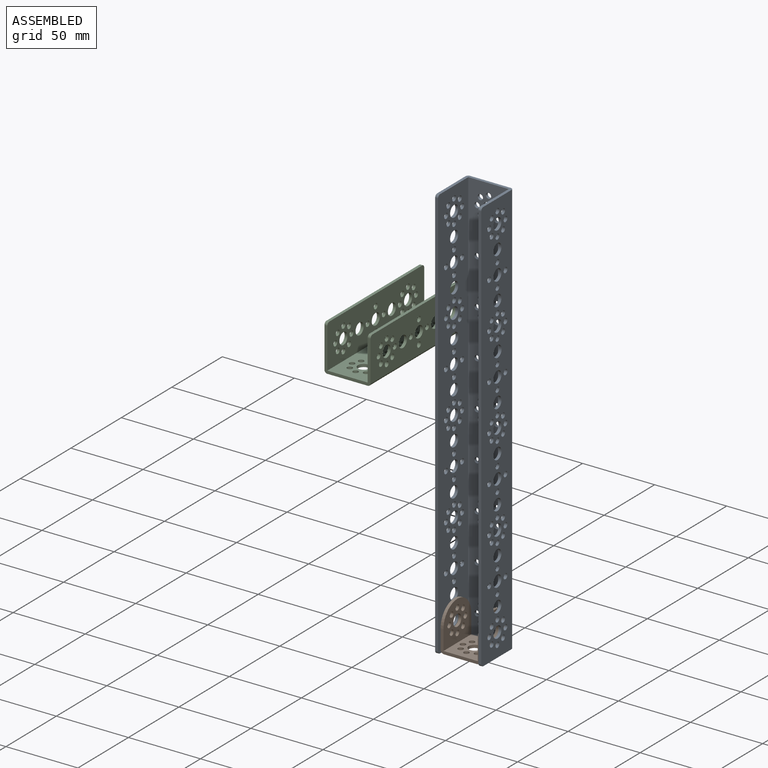
[diagram: assembled view]
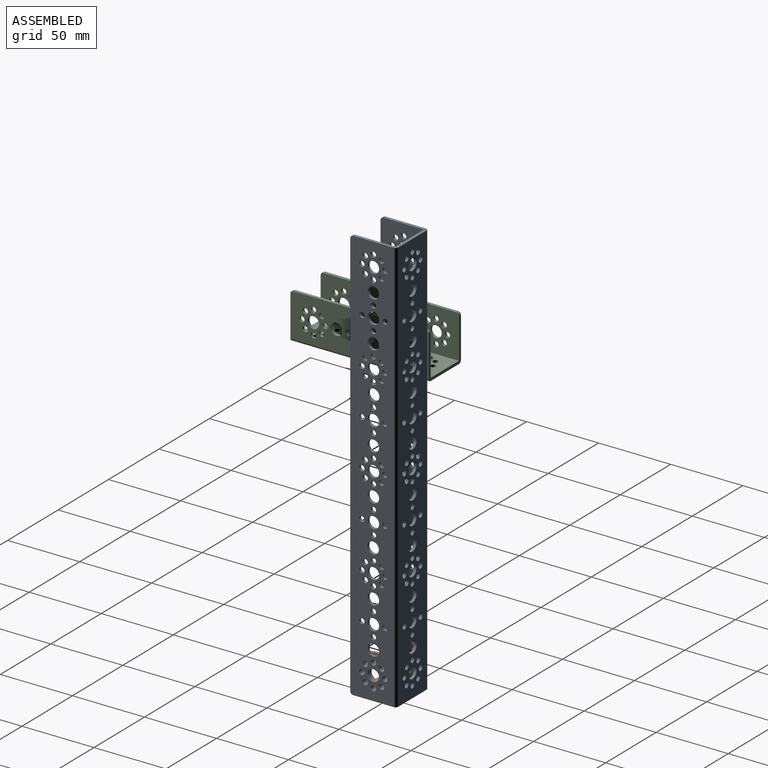
[diagram: assembled view, second angle]
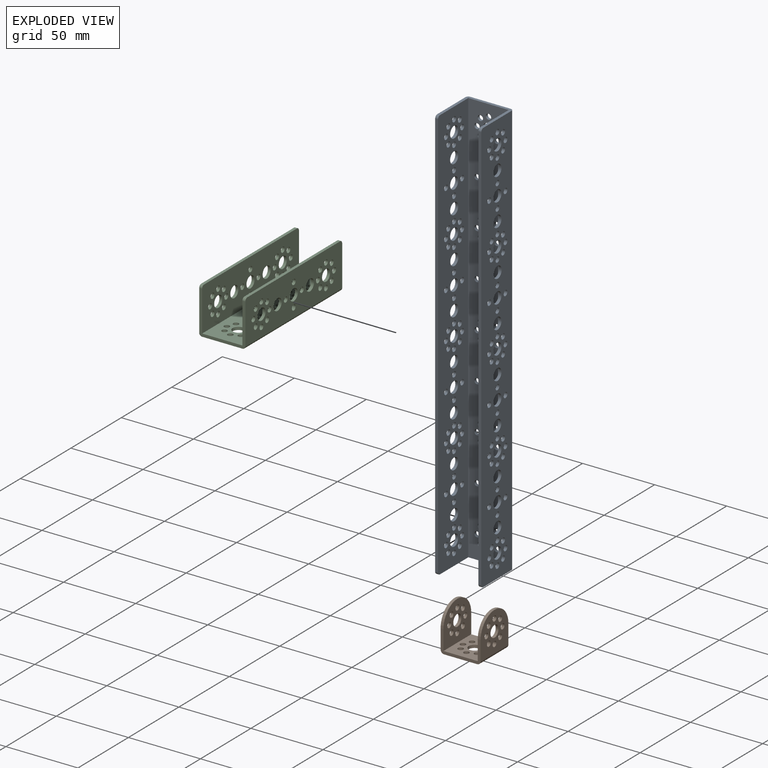
[diagram: exploded view]
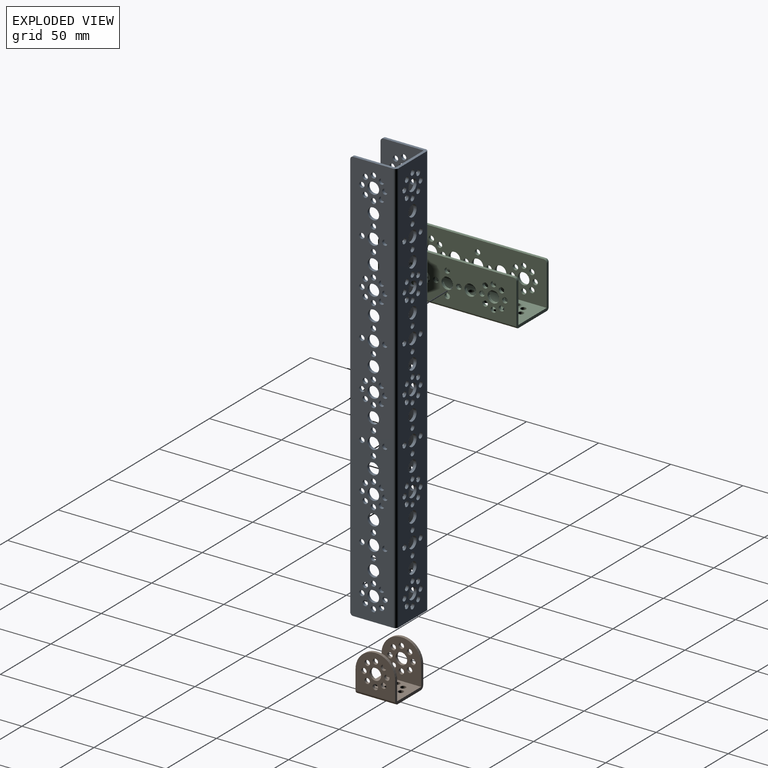
[diagram: exploded view, second angle]
ASSEMBLY  parts=3 mates=2
PART A: 235 faces, bbox 32x32x288 mm
  f0: cylinder r=1.85mm len=3.7mm, axis (1,0,0), area 23.2mm2, adj f219,f221
  f1: cylinder r=1.85mm len=3.7mm, axis (1,0,0), area 23.2mm2, adj f223,f225
  f2: cylinder r=1.85mm len=3.7mm, axis (1,0,0), area 23.2mm2, adj f219,f221
  f3: cylinder r=1.85mm len=3.7mm, axis (1,0,0), area 23.2mm2, adj f223,f225
  f4: cylinder r=1.85mm len=3.7mm, axis (1,0,0), area 23.2mm2, adj f219,f221
  f5: cylinder r=1.85mm len=3.7mm, axis (1,0,0), area 23.2mm2, adj f223,f225
  f6: cylinder r=1.85mm len=3.7mm, axis (1,0,0), area 23.2mm2, adj f219,f221
  f7: cylinder r=1.85mm len=3.7mm, axis (1,0,0), area 23.2mm2, adj f223,f225
  f8: cylinder r=1.85mm len=3.7mm, axis (1,0,0), area 23.2mm2, adj f219,f221
  f9: cylinder r=1.85mm len=3.7mm, axis (1,0,0), area 23.2mm2, adj f223,f225
  f10: cylinder r=1.85mm len=3.7mm, axis (1,0,0), area 23.2mm2, adj f219,f221
  f11: cylinder r=1.85mm len=3.7mm, axis (1,0,0), area 23.2mm2, adj f223,f225
  f12: cylinder r=4mm len=8mm, axis (1,0,0), area 50.3mm2, adj f219,f221
  f13: cylinder r=4mm len=8mm, axis (1,0,0), area 50.3mm2, adj f223,f225
  f14: cylinder r=1.85mm len=3.7mm, axis (1,0,0), area 23.2mm2, adj f219,f221
  f15: cylinder r=1.85mm len=3.7mm, axis (1,0,0), area 23.2mm2, adj f223,f225
  f16: cylinder r=1.85mm len=3.7mm, axis (1,0,0), area 23.2mm2, adj f219,f221
  f17: cylinder r=1.85mm len=3.7mm, axis (1,0,0), area 23.2mm2, adj f223,f225
  f18: cylinder r=1.85mm len=3.7mm, axis (1,0,0), area 23.2mm2, adj f219,f221
  f19: cylinder r=1.85mm len=3.7mm, axis (1,0,0), area 23.2mm2, adj f223,f225
  f20: cylinder r=1.85mm len=3.7mm, axis (1,0,0), area 23.2mm2, adj f219,f221
  f21: cylinder r=1.85mm len=3.7mm, axis (1,0,0), area 23.2mm2, adj f223,f225
  f22: cylinder r=1.85mm len=3.7mm, axis (1,0,0), area 23.2mm2, adj f219,f221
  f23: cylinder r=1.85mm len=3.7mm, axis (1,0,0), area 23.2mm2, adj f223,f225
  f24: cylinder r=1.85mm len=3.7mm, axis (1,0,0), area 23.2mm2, adj f219,f221
  f25: cylinder r=1.85mm len=3.7mm, axis (1,0,0), area 23.2mm2, adj f223,f225
  f26: cylinder r=1.85mm len=3.7mm, axis (1,0,0), area 23.2mm2, adj f219,f221
  f27: cylinder r=1.85mm len=3.7mm, axis (1,0,0), area 23.2mm2, adj f223,f225
  f28: cylinder r=1.85mm len=3.7mm, axis (1,0,0), area 23.2mm2, adj f219,f221
  f29: cylinder r=1.85mm len=3.7mm, axis (1,0,0), area 23.2mm2, adj f223,f225
  f30: cylinder r=1.85mm len=3.7mm, axis (1,0,0), area 23.2mm2, adj f219,f221
  f31: cylinder r=1.85mm len=3.7mm, axis (1,0,0), area 23.2mm2, adj f223,f225
  f32: cylinder r=1.85mm len=3.7mm, axis (1,0,0), area 23.2mm2, adj f219,f221
  f33: cylinder r=1.85mm len=3.7mm, axis (1,0,0), area 23.2mm2, adj f223,f225
  f34: cylinder r=4mm len=8mm, axis (1,0,0), area 50.3mm2, adj f219,f221
  f35: cylinder r=4mm len=8mm, axis (1,0,0), area 50.3mm2, adj f223,f225
  f36: cylinder r=1.85mm len=3.7mm, axis (1,0,0), area 23.2mm2, adj f219,f221
  f37: cylinder r=1.85mm len=3.7mm, axis (1,0,0), area 23.2mm2, adj f223,f225
  f38: cylinder r=1.85mm len=3.7mm, axis (1,0,0), area 23.2mm2, adj f219,f221
  f39: cylinder r=1.85mm len=3.7mm, axis (1,0,0), area 23.2mm2, adj f223,f225
  f40: cylinder r=1.85mm len=3.7mm, axis (1,0,0), area 23.2mm2, adj f219,f221
  f41: cylinder r=1.85mm len=3.7mm, axis (1,0,0), area 23.2mm2, adj f223,f225
  f42: cylinder r=1.85mm len=3.7mm, axis (1,0,0), area 23.2mm2, adj f219,f221
  f43: cylinder r=1.85mm len=3.7mm, axis (1,0,0), area 23.2mm2, adj f223,f225
  f44: cylinder r=4mm len=8mm, axis (1,0,0), area 50.3mm2, adj f219,f221
  f45: cylinder r=4mm len=8mm, axis (1,0,0), area 50.3mm2, adj f223,f225
  f46: cylinder r=1.85mm len=3.7mm, axis (1,0,0), area 23.2mm2, adj f219,f221
  f47: cylinder r=1.85mm len=3.7mm, axis (1,0,0), area 23.2mm2, adj f223,f225
  f48: cylinder r=1.85mm len=3.7mm, axis (1,0,0), area 23.2mm2, adj f219,f221
  f49: cylinder r=1.85mm len=3.7mm, axis (1,0,0), area 23.2mm2, adj f223,f225
  f50: cylinder r=1.85mm len=3.7mm, axis (1,0,0), area 23.2mm2, adj f219,f221
  f51: cylinder r=1.85mm len=3.7mm, axis (1,0,0), area 23.2mm2, adj f223,f225
  f52: cylinder r=1.85mm len=3.7mm, axis (1,0,0), area 23.2mm2, adj f219,f221
  f53: cylinder r=1.85mm len=3.7mm, axis (1,0,0), area 23.2mm2, adj f223,f225
  f54: cylinder r=1.85mm len=3.7mm, axis (1,0,0), area 23.2mm2, adj f219,f221
  f55: cylinder r=1.85mm len=3.7mm, axis (1,0,0), area 23.2mm2, adj f223,f225
  f56: cylinder r=1.85mm len=3.7mm, axis (1,0,0), area 23.2mm2, adj f219,f221
  f57: cylinder r=1.85mm len=3.7mm, axis (1,0,0), area 23.2mm2, adj f223,f225
  f58: cylinder r=1.85mm len=3.7mm, axis (1,0,0), area 23.2mm2, adj f219,f221
  f59: cylinder r=1.85mm len=3.7mm, axis (1,0,0), area 23.2mm2, adj f223,f225
  f60: cylinder r=1.85mm len=3.7mm, axis (1,0,0), area 23.2mm2, adj f219,f221
  f61: cylinder r=1.85mm len=3.7mm, axis (1,0,0), area 23.2mm2, adj f223,f225
  f62: cylinder r=4mm len=8mm, axis (1,0,0), area 50.3mm2, adj f219,f221
  f63: cylinder r=4mm len=8mm, axis (1,0,0), area 50.3mm2, adj f223,f225
  f64: cylinder r=1.85mm len=3.7mm, axis (1,0,0), area 23.2mm2, adj f219,f221
  f65: cylinder r=1.85mm len=3.7mm, axis (1,0,0), area 23.2mm2, adj f223,f225
  f66: cylinder r=1.85mm len=3.7mm, axis (1,0,0), area 23.2mm2, adj f219,f221
  f67: cylinder r=1.85mm len=3.7mm, axis (1,0,0), area 23.2mm2, adj f223,f225
  f68: cylinder r=1.85mm len=3.7mm, axis (1,0,0), area 23.2mm2, adj f219,f221
  f69: cylinder r=1.85mm len=3.7mm, axis (1,0,0), area 23.2mm2, adj f223,f225
  f70: cylinder r=1.85mm len=3.7mm, axis (1,0,0), area 23.2mm2, adj f219,f221
  f71: cylinder r=1.85mm len=3.7mm, axis (1,0,0), area 23.2mm2, adj f223,f225
  f72: cylinder r=4mm len=8mm, axis (1,0,0), area 50.3mm2, adj f219,f221
  f73: cylinder r=4mm len=8mm, axis (1,0,0), area 50.3mm2, adj f223,f225
  f74: cylinder r=4mm len=8mm, axis (1,0,0), area 50.3mm2, adj f219,f221
  f75: cylinder r=4mm len=8mm, axis (1,0,0), area 50.3mm2, adj f223,f225
  f76: cylinder r=4mm len=8mm, axis (1,0,0), area 50.3mm2, adj f219,f221
  f77: cylinder r=4mm len=8mm, axis (1,0,0), area 50.3mm2, adj f223,f225
  f78: cylinder r=4mm len=8mm, axis (1,0,0), area 50.3mm2, adj f219,f221
  f79: cylinder r=4mm len=8mm, axis (1,0,0), area 50.3mm2, adj f223,f225
  f80: cylinder r=4mm len=8mm, axis (1,0,0), area 50.3mm2, adj f219,f221
  f81: cylinder r=4mm len=8mm, axis (1,0,0), area 50.3mm2, adj f223,f225
  f82: cylinder r=1.85mm len=3.7mm, axis (1,0,0), area 23.2mm2, adj f219,f221
  f83: cylinder r=1.85mm len=3.7mm, axis (1,0,0), area 23.2mm2, adj f223,f225
  f84: cylinder r=1.85mm len=3.7mm, axis (1,0,0), area 23.2mm2, adj f219,f221
  f85: cylinder r=1.85mm len=3.7mm, axis (1,0,0), area 23.2mm2, adj f223,f225
  f86: cylinder r=1.85mm len=3.7mm, axis (1,0,0), area 23.2mm2, adj f219,f221
  f87: cylinder r=1.85mm len=3.7mm, axis (1,0,0), area 23.2mm2, adj f223,f225
  f88: cylinder r=1.85mm len=3.7mm, axis (1,0,0), area 23.2mm2, adj f219,f221
  f89: cylinder r=1.85mm len=3.7mm, axis (1,0,0), area 23.2mm2, adj f223,f225
  f90: cylinder r=1.85mm len=3.7mm, axis (1,0,0), area 23.2mm2, adj f219,f221
  f91: cylinder r=1.85mm len=3.7mm, axis (1,0,0), area 23.2mm2, adj f223,f225
  f92: cylinder r=1.85mm len=3.7mm, axis (1,0,0), area 23.2mm2, adj f219,f221
  f93: cylinder r=1.85mm len=3.7mm, axis (1,0,0), area 23.2mm2, adj f223,f225
  f94: cylinder r=1.85mm len=3.7mm, axis (1,0,0), area 23.2mm2, adj f219,f221
  f95: cylinder r=1.85mm len=3.7mm, axis (1,0,0), area 23.2mm2, adj f223,f225
  f96: cylinder r=1.85mm len=3.7mm, axis (1,0,0), area 23.2mm2, adj f219,f221
  f97: cylinder r=1.85mm len=3.7mm, axis (1,0,0), area 23.2mm2, adj f223,f225
  f98: cylinder r=4mm len=8mm, axis (1,0,0), area 50.3mm2, adj f219,f221
  f99: cylinder r=4mm len=8mm, axis (1,0,0), area 50.3mm2, adj f223,f225
  f100: cylinder r=1.85mm len=3.7mm, axis (1,0,0), area 23.2mm2, adj f219,f221
  f101: cylinder r=1.85mm len=3.7mm, axis (1,0,0), area 23.2mm2, adj f223,f225
  f102: cylinder r=1.85mm len=3.7mm, axis (1,0,0), area 23.2mm2, adj f219,f221
  f103: cylinder r=1.85mm len=3.7mm, axis (1,0,0), area 23.2mm2, adj f223,f225
  f104: cylinder r=1.85mm len=3.7mm, axis (1,0,0), area 23.2mm2, adj f219,f221
  f105: cylinder r=1.85mm len=3.7mm, axis (1,0,0), area 23.2mm2, adj f223,f225
  f106: cylinder r=1.85mm len=3.7mm, axis (1,0,0), area 23.2mm2, adj f219,f221
  f107: cylinder r=1.85mm len=3.7mm, axis (1,0,0), area 23.2mm2, adj f223,f225
  f108: cylinder r=4mm len=8mm, axis (1,0,0), area 50.3mm2, adj f219,f221
  f109: cylinder r=4mm len=8mm, axis (1,0,0), area 50.3mm2, adj f223,f225
  f110: cylinder r=1.85mm len=3.7mm, axis (1,0,0), area 23.2mm2, adj f219,f221
  f111: cylinder r=1.85mm len=3.7mm, axis (1,0,0), area 23.2mm2, adj f223,f225
  f112: cylinder r=1.85mm len=3.7mm, axis (1,0,0), area 23.2mm2, adj f219,f221
  f113: cylinder r=1.85mm len=3.7mm, axis (1,0,0), area 23.2mm2, adj f223,f225
  f114: cylinder r=1.85mm len=3.7mm, axis (1,0,0), area 23.2mm2, adj f219,f221
  f115: cylinder r=1.85mm len=3.7mm, axis (1,0,0), area 23.2mm2, adj f223,f225
  f116: cylinder r=1.85mm len=3.7mm, axis (1,0,0), area 23.2mm2, adj f219,f221
  f117: cylinder r=1.85mm len=3.7mm, axis (1,0,0), area 23.2mm2, adj f223,f225
  f118: cylinder r=1.85mm len=3.7mm, axis (1,0,0), area 23.2mm2, adj f219,f221
  f119: cylinder r=1.85mm len=3.7mm, axis (1,0,0), area 23.2mm2, adj f223,f225
  f120: cylinder r=1.85mm len=3.7mm, axis (1,0,0), area 23.2mm2, adj f219,f221
  f121: cylinder r=1.85mm len=3.7mm, axis (1,0,0), area 23.2mm2, adj f223,f225
  f122: cylinder r=4mm len=8mm, axis (1,0,0), area 50.3mm2, adj f219,f221
  f123: cylinder r=4mm len=8mm, axis (1,0,0), area 50.3mm2, adj f223,f225
  f124: cylinder r=1.85mm len=3.7mm, axis (1,0,0), area 23.2mm2, adj f219,f221
  f125: cylinder r=1.85mm len=3.7mm, axis (1,0,0), area 23.2mm2, adj f223,f225
  f126: cylinder r=1.85mm len=3.7mm, axis (1,0,0), area 23.2mm2, adj f219,f221
  f127: cylinder r=1.85mm len=3.7mm, axis (1,0,0), area 23.2mm2, adj f223,f225
  f128: cylinder r=1.85mm len=3.7mm, axis (1,0,0), area 23.2mm2, adj f219,f221
  f129: cylinder r=1.85mm len=3.7mm, axis (1,0,0), area 23.2mm2, adj f223,f225
  f130: cylinder r=1.85mm len=3.7mm, axis (1,0,0), area 23.2mm2, adj f219,f221
  f131: cylinder r=1.85mm len=3.7mm, axis (1,0,0), area 23.2mm2, adj f223,f225
  f132: cylinder r=4mm len=8mm, axis (1,0,0), area 50.3mm2, adj f219,f221
  f133: cylinder r=4mm len=8mm, axis (1,0,0), area 50.3mm2, adj f223,f225
  f134: cylinder r=4mm len=8mm, axis (1,0,0), area 50.3mm2, adj f219,f221
  f135: cylinder r=4mm len=8mm, axis (1,0,0), area 50.3mm2, adj f223,f225
  f136: cylinder r=4mm len=8mm, axis (1,0,0), area 50.3mm2, adj f219,f221
  f137: cylinder r=4mm len=8mm, axis (1,0,0), area 50.3mm2, adj f223,f225
  f138: cylinder r=4mm len=8mm, axis (1,0,0), area 50.3mm2, adj f219,f221
  f139: cylinder r=4mm len=8mm, axis (1,0,0), area 50.3mm2, adj f223,f225
  f140: cylinder r=4mm len=8mm, axis (1,0,0), area 50.3mm2, adj f219,f221
  f141: cylinder r=4mm len=8mm, axis (1,0,0), area 50.3mm2, adj f223,f225
  f142: cylinder r=1.85mm len=3.7mm, axis (1,0,0), area 23.2mm2, adj f219,f221
  f143: cylinder r=1.85mm len=3.7mm, axis (1,0,0), area 23.2mm2, adj f223,f225
  f144: cylinder r=1.85mm len=3.7mm, axis (1,0,0), area 23.2mm2, adj f219,f221
  f145: cylinder r=1.85mm len=3.7mm, axis (1,0,0), area 23.2mm2, adj f223,f225
  f146: cylinder r=1.85mm len=3.7mm, axis (0,1,0), area 23.2mm2, adj f222,f226
  f147: cylinder r=1.85mm len=3.7mm, axis (0,1,0), area 23.2mm2, adj f222,f226
  f148: cylinder r=1.85mm len=3.7mm, axis (0,1,0), area 23.2mm2, adj f222,f226
  f149: cylinder r=1.85mm len=3.7mm, axis (0,1,0), area 23.2mm2, adj f222,f226
  f150: cylinder r=1.85mm len=3.7mm, axis (0,1,0), area 23.2mm2, adj f222,f226
  f151: cylinder r=1.85mm len=3.7mm, axis (0,1,0), area 23.2mm2, adj f222,f226
  f152: cylinder r=4mm len=8mm, axis (0,1,0), area 50.3mm2, adj f222,f226
  f153: cylinder r=1.85mm len=3.7mm, axis (0,1,0), area 23.2mm2, adj f222,f226
  f154: cylinder r=1.85mm len=3.7mm, axis (0,1,0), area 23.2mm2, adj f222,f226
  f155: cylinder r=1.85mm len=3.7mm, axis (0,1,0), area 23.2mm2, adj f222,f226
  f156: cylinder r=1.85mm len=3.7mm, axis (0,1,0), area 23.2mm2, adj f222,f226
  f157: cylinder r=1.85mm len=3.7mm, axis (0,1,0), area 23.2mm2, adj f222,f226
  f158: cylinder r=1.85mm len=3.7mm, axis (0,1,0), area 23.2mm2, adj f222,f226
  f159: cylinder r=1.85mm len=3.7mm, axis (0,1,0), area 23.2mm2, adj f222,f226
  f160: cylinder r=1.85mm len=3.7mm, axis (0,1,0), area 23.2mm2, adj f222,f226
  f161: cylinder r=1.85mm len=3.7mm, axis (0,1,0), area 23.2mm2, adj f222,f226
  f162: cylinder r=1.85mm len=3.7mm, axis (0,1,0), area 23.2mm2, adj f222,f226
  f163: cylinder r=4mm len=8mm, axis (0,1,0), area 50.3mm2, adj f222,f226
  f164: cylinder r=1.85mm len=3.7mm, axis (0,1,0), area 23.2mm2, adj f222,f226
  f165: cylinder r=1.85mm len=3.7mm, axis (0,1,0), area 23.2mm2, adj f222,f226
  f166: cylinder r=1.85mm len=3.7mm, axis (0,1,0), area 23.2mm2, adj f222,f226
  f167: cylinder r=1.85mm len=3.7mm, axis (0,1,0), area 23.2mm2, adj f222,f226
  f168: cylinder r=4mm len=8mm, axis (0,1,0), area 50.3mm2, adj f222,f226
  f169: cylinder r=1.85mm len=3.7mm, axis (0,1,0), area 23.2mm2, adj f222,f226
  f170: cylinder r=1.85mm len=3.7mm, axis (0,1,0), area 23.2mm2, adj f222,f226
  f171: cylinder r=1.85mm len=3.7mm, axis (0,1,0), area 23.2mm2, adj f222,f226
  f172: cylinder r=1.85mm len=3.7mm, axis (0,1,0), area 23.2mm2, adj f222,f226
  f173: cylinder r=1.85mm len=3.7mm, axis (0,1,0), area 23.2mm2, adj f222,f226
  f174: cylinder r=1.85mm len=3.7mm, axis (0,1,0), area 23.2mm2, adj f222,f226
  f175: cylinder r=1.85mm len=3.7mm, axis (0,1,0), area 23.2mm2, adj f222,f226
  f176: cylinder r=1.85mm len=3.7mm, axis (0,1,0), area 23.2mm2, adj f222,f226
  f177: cylinder r=4mm len=8mm, axis (0,1,0), area 50.3mm2, adj f222,f226
  f178: cylinder r=1.85mm len=3.7mm, axis (0,1,0), area 23.2mm2, adj f222,f226
  f179: cylinder r=1.85mm len=3.7mm, axis (0,1,0), area 23.2mm2, adj f222,f226
  f180: cylinder r=1.85mm len=3.7mm, axis (0,1,0), area 23.2mm2, adj f222,f226
  f181: cylinder r=1.85mm len=3.7mm, axis (0,1,0), area 23.2mm2, adj f222,f226
  f182: cylinder r=4mm len=8mm, axis (0,1,0), area 50.3mm2, adj f222,f226
  f183: cylinder r=4mm len=8mm, axis (0,1,0), area 50.3mm2, adj f222,f226
  f184: cylinder r=4mm len=8mm, axis (0,1,0), area 50.3mm2, adj f222,f226
  f185: cylinder r=4mm len=8mm, axis (0,1,0), area 50.3mm2, adj f222,f226
  f186: cylinder r=4mm len=8mm, axis (0,1,0), area 50.3mm2, adj f222,f226
  f187: cylinder r=1.85mm len=3.7mm, axis (0,1,0), area 23.2mm2, adj f222,f226
  f188: cylinder r=1.85mm len=3.7mm, axis (0,1,0), area 23.2mm2, adj f222,f226
  f189: cylinder r=1.85mm len=3.7mm, axis (0,1,0), area 23.2mm2, adj f222,f226
  f190: cylinder r=1.85mm len=3.7mm, axis (0,1,0), area 23.2mm2, adj f222,f226
  f191: cylinder r=1.85mm len=3.7mm, axis (0,1,0), area 23.2mm2, adj f222,f226
  f192: cylinder r=1.85mm len=3.7mm, axis (0,1,0), area 23.2mm2, adj f222,f226
  f193: cylinder r=1.85mm len=3.7mm, axis (0,1,0), area 23.2mm2, adj f222,f226
  f194: cylinder r=1.85mm len=3.7mm, axis (0,1,0), area 23.2mm2, adj f222,f226
  f195: cylinder r=4mm len=8mm, axis (0,1,0), area 50.3mm2, adj f222,f226
  f196: cylinder r=1.85mm len=3.7mm, axis (0,1,0), area 23.2mm2, adj f222,f226
  f197: cylinder r=1.85mm len=3.7mm, axis (0,1,0), area 23.2mm2, adj f222,f226
  f198: cylinder r=1.85mm len=3.7mm, axis (0,1,0), area 23.2mm2, adj f222,f226
  f199: cylinder r=1.85mm len=3.7mm, axis (0,1,0), area 23.2mm2, adj f222,f226
  f200: cylinder r=4mm len=8mm, axis (0,1,0), area 50.3mm2, adj f222,f226
  f201: cylinder r=1.85mm len=3.7mm, axis (0,1,0), area 23.2mm2, adj f222,f226
  f202: cylinder r=1.85mm len=3.7mm, axis (0,1,0), area 23.2mm2, adj f222,f226
  f203: cylinder r=1.85mm len=3.7mm, axis (0,1,0), area 23.2mm2, adj f222,f226
  f204: cylinder r=1.85mm len=3.7mm, axis (0,1,0), area 23.2mm2, adj f222,f226
  f205: cylinder r=1.85mm len=3.7mm, axis (0,1,0), area 23.2mm2, adj f222,f226
  f206: cylinder r=1.85mm len=3.7mm, axis (0,1,0), area 23.2mm2, adj f222,f226
  f207: cylinder r=4mm len=8mm, axis (0,1,0), area 50.3mm2, adj f222,f226
  f208: cylinder r=1.85mm len=3.7mm, axis (0,1,0), area 23.2mm2, adj f222,f226
  f209: cylinder r=1.85mm len=3.7mm, axis (0,1,0), area 23.2mm2, adj f222,f226
  f210: cylinder r=1.85mm len=3.7mm, axis (0,1,0), area 23.2mm2, adj f222,f226
  f211: cylinder r=1.85mm len=3.7mm, axis (0,1,0), area 23.2mm2, adj f222,f226
  f212: cylinder r=4mm len=8mm, axis (0,1,0), area 50.3mm2, adj f222,f226
  f213: cylinder r=4mm len=8mm, axis (0,1,0), area 50.3mm2, adj f222,f226
  f214: cylinder r=4mm len=8mm, axis (0,1,0), area 50.3mm2, adj f222,f226
  f215: cylinder r=4mm len=8mm, axis (0,1,0), area 50.3mm2, adj f222,f226
  f216: cylinder r=4mm len=8mm, axis (0,1,0), area 50.3mm2, adj f222,f226
  f217: cylinder r=1.85mm len=3.7mm, axis (0,1,0), area 23.2mm2, adj f222,f226
  f218: cylinder r=1.85mm len=3.7mm, axis (0,1,0), area 23.2mm2, adj f222,f226
  f219: plane 288x30mm, normal (1,0,0), area 7181.7mm2, adj f0,f2,f4,f6,f8,f10,f12,f14
  f220: plane 284x2mm, normal (0,-1,0), area 568mm2, adj f219,f221,f230,f232
  f221: plane 288x30mm, normal (-1,0,0), area 7181.7mm2, adj f0,f2,f4,f6,f8,f10,f12,f14
  f222: plane 288x28mm, normal (0,-1,0), area 6607.4mm2, adj f146,f147,f148,f149,f150,f151,f152,f153
  f223: plane 288x30mm, normal (1,0,0), area 7181.7mm2, adj f1,f3,f5,f7,f9,f11,f13,f15
  f224: plane 284x2mm, normal (0,-1,0), area 568mm2, adj f223,f225,f229,f231
  f225: plane 288x30mm, normal (-1,0,0), area 7181.7mm2, adj f1,f3,f5,f7,f9,f11,f13,f15
  f226: plane 288x28mm, normal (0,1,0), area 6607.4mm2, adj f146,f147,f148,f149,f150,f151,f152,f153
  f227: plane 32x30mm, normal (0,0,-1), area 174.3mm2, adj f219,f221,f222,f223,f225,f226,f229,f230
  f228: plane 32x30mm, normal (0,0,1), area 174.3mm2, adj f219,f221,f222,f223,f225,f226,f231,f232
  f229: cylinder r=2mm len=2mm, axis (-1,0,0), area 6.3mm2, adj f223,f224,f225,f227
  f230: cylinder r=2mm len=2mm, axis (-1,0,0), area 6.3mm2, adj f219,f220,f221,f227
  f231: cylinder r=2mm len=2mm, axis (1,0,0), area 6.3mm2, adj f223,f224,f225,f228
  f232: cylinder r=2mm len=2mm, axis (1,0,0), area 6.3mm2, adj f219,f220,f221,f228
  f233: cylinder r=2mm len=288mm, axis (0,0,1), area 904.8mm2, adj f225,f226,f227,f228
  f234: cylinder r=2mm len=288mm, axis (0,0,1), area 904.8mm2, adj f219,f226,f227,f228
PART B: 39 faces, bbox 29.5x27.5x27.8 mm
  f0: cylinder r=1.85mm len=3.7mm, axis (-1,0,0), area 23.2mm2, adj f27,f32
  f1: cylinder r=1.85mm len=3.7mm, axis (-1,0,0), area 23.2mm2, adj f27,f32
  f2: cylinder r=1.85mm len=3.7mm, axis (-1,0,0), area 23.2mm2, adj f27,f32
  f3: cylinder r=1.85mm len=3.7mm, axis (-1,0,0), area 23.2mm2, adj f27,f32
  f4: cylinder r=1.85mm len=3.7mm, axis (-1,0,0), area 23.2mm2, adj f27,f32
  f5: cylinder r=1.85mm len=3.7mm, axis (-1,0,0), area 23.2mm2, adj f27,f32
  f6: cylinder r=1.85mm len=3.7mm, axis (-1,0,0), area 23.2mm2, adj f27,f32
  f7: cylinder r=1.85mm len=3.7mm, axis (-1,0,0), area 23.2mm2, adj f27,f32
  f8: cylinder r=4mm len=8mm, axis (-1,0,0), area 50.3mm2, adj f27,f32
  f9: cylinder r=1.85mm len=3.7mm, axis (0,0,1), area 23.2mm2, adj f30,f33
  f10: cylinder r=1.85mm len=3.7mm, axis (0,0,1), area 23.2mm2, adj f28,f34
  f11: cylinder r=1.85mm len=3.7mm, axis (0,0,1), area 23.2mm2, adj f30,f33
  f12: cylinder r=1.85mm len=3.7mm, axis (0,0,1), area 23.2mm2, adj f28,f34
  f13: cylinder r=1.85mm len=3.7mm, axis (0,0,1), area 23.2mm2, adj f30,f33
  f14: cylinder r=1.85mm len=3.7mm, axis (0,0,1), area 23.2mm2, adj f28,f34
  f15: cylinder r=1.85mm len=3.7mm, axis (0,0,1), area 23.2mm2, adj f30,f33
  f16: cylinder r=1.85mm len=3.7mm, axis (0,0,1), area 23.2mm2, adj f28,f34
  f17: cylinder r=1.85mm len=3.7mm, axis (0,0,1), area 23.2mm2, adj f30,f33
  f18: cylinder r=1.85mm len=3.7mm, axis (0,0,1), area 23.2mm2, adj f28,f34
  f19: cylinder r=1.85mm len=3.7mm, axis (0,0,1), area 23.2mm2, adj f30,f33
  f20: cylinder r=1.85mm len=3.7mm, axis (0,0,1), area 23.2mm2, adj f28,f34
  f21: cylinder r=1.85mm len=3.7mm, axis (0,0,1), area 23.2mm2, adj f30,f33
  f22: cylinder r=1.85mm len=3.7mm, axis (0,0,1), area 23.2mm2, adj f28,f34
  f23: cylinder r=1.85mm len=3.7mm, axis (0,0,1), area 23.2mm2, adj f30,f33
  f24: cylinder r=1.85mm len=3.7mm, axis (0,0,1), area 23.2mm2, adj f28,f34
  f25: cylinder r=4mm len=8mm, axis (0,0,1), area 50.3mm2, adj f30,f33
  f26: cylinder r=4mm len=8mm, axis (0,0,1), area 50.3mm2, adj f28,f34
  f27: plane 27.5x23.8mm, normal (1,0,0), area 518.2mm2, adj f0,f1,f2,f3,f4,f5,f6,f7
  f28: plane 27.5x27mm, normal (0,0,-1), area 525.1mm2, adj f10,f12,f14,f16,f18,f20,f22,f24
  f29: plane 27.8x15.75mm, normal (0,1,0), area 107.9mm2, adj f27,f28,f30,f32,f33,f34,f35,f36
  f30: plane 27.5x27mm, normal (0,0,1), area 525.1mm2, adj f9,f11,f13,f15,f17,f19,f21,f23
  f31: plane 27.8x15.75mm, normal (0,-1,0), area 107.9mm2, adj f27,f28,f30,f32,f33,f34,f35,f36
  f32: plane 27.5x22.8mm, normal (-1,0,0), area 490.7mm2, adj f0,f1,f2,f3,f4,f5,f6,f7
  f33: plane 27.5x27.5mm, normal (0,0,-1), area 538.8mm2, adj f9,f11,f13,f15,f17,f19,f21,f23
  f34: plane 27.5x27.5mm, normal (0,0,1), area 538.8mm2, adj f10,f12,f14,f16,f18,f20,f22,f24
  f35: cylinder r=13.75mm len=27.5mm, axis (0,0,1), area 86.4mm2, adj f28,f29,f31,f34
  f36: cylinder r=13.75mm len=27.5mm, axis (0,0,-1), area 86.4mm2, adj f29,f30,f31,f33
  f37: cylinder r=2.5mm len=27.5mm, axis (0,-1,0), area 108mm2, adj f29,f30,f31,f32
  f38: cylinder r=2.5mm len=27.5mm, axis (0,1,0), area 108mm2, adj f28,f29,f31,f32
PART C: 91 faces, bbox 32x32x96 mm
  f0: cylinder r=1.85mm len=3.7mm, axis (1,0,0), area 23.2mm2, adj f75,f77
  f1: cylinder r=1.85mm len=3.7mm, axis (1,0,0), area 23.2mm2, adj f79,f81
  f2: cylinder r=1.85mm len=3.7mm, axis (1,0,0), area 23.2mm2, adj f75,f77
  f3: cylinder r=1.85mm len=3.7mm, axis (1,0,0), area 23.2mm2, adj f79,f81
  f4: cylinder r=1.85mm len=3.7mm, axis (1,0,0), area 23.2mm2, adj f75,f77
  f5: cylinder r=1.85mm len=3.7mm, axis (1,0,0), area 23.2mm2, adj f79,f81
  f6: cylinder r=1.85mm len=3.7mm, axis (1,0,0), area 23.2mm2, adj f75,f77
  f7: cylinder r=1.85mm len=3.7mm, axis (1,0,0), area 23.2mm2, adj f79,f81
  f8: cylinder r=1.85mm len=3.7mm, axis (1,0,0), area 23.2mm2, adj f75,f77
  f9: cylinder r=1.85mm len=3.7mm, axis (1,0,0), area 23.2mm2, adj f79,f81
  f10: cylinder r=1.85mm len=3.7mm, axis (1,0,0), area 23.2mm2, adj f75,f77
  f11: cylinder r=1.85mm len=3.7mm, axis (1,0,0), area 23.2mm2, adj f79,f81
  f12: cylinder r=1.85mm len=3.7mm, axis (1,0,0), area 23.2mm2, adj f75,f77
  f13: cylinder r=1.85mm len=3.7mm, axis (1,0,0), area 23.2mm2, adj f79,f81
  f14: cylinder r=1.85mm len=3.7mm, axis (1,0,0), area 23.2mm2, adj f75,f77
  f15: cylinder r=1.85mm len=3.7mm, axis (1,0,0), area 23.2mm2, adj f79,f81
  f16: cylinder r=4mm len=8mm, axis (1,0,0), area 50.3mm2, adj f75,f77
  f17: cylinder r=4mm len=8mm, axis (1,0,0), area 50.3mm2, adj f79,f81
  f18: cylinder r=1.85mm len=3.7mm, axis (1,0,0), area 23.2mm2, adj f75,f77
  f19: cylinder r=1.85mm len=3.7mm, axis (1,0,0), area 23.2mm2, adj f79,f81
  f20: cylinder r=1.85mm len=3.7mm, axis (1,0,0), area 23.2mm2, adj f75,f77
  f21: cylinder r=1.85mm len=3.7mm, axis (1,0,0), area 23.2mm2, adj f79,f81
  f22: cylinder r=1.85mm len=3.7mm, axis (1,0,0), area 23.2mm2, adj f75,f77
  f23: cylinder r=1.85mm len=3.7mm, axis (1,0,0), area 23.2mm2, adj f79,f81
  f24: cylinder r=1.85mm len=3.7mm, axis (1,0,0), area 23.2mm2, adj f75,f77
  f25: cylinder r=1.85mm len=3.7mm, axis (1,0,0), area 23.2mm2, adj f79,f81
  f26: cylinder r=1.85mm len=3.7mm, axis (1,0,0), area 23.2mm2, adj f75,f77
  f27: cylinder r=1.85mm len=3.7mm, axis (1,0,0), area 23.2mm2, adj f79,f81
  f28: cylinder r=1.85mm len=3.7mm, axis (1,0,0), area 23.2mm2, adj f75,f77
  f29: cylinder r=1.85mm len=3.7mm, axis (1,0,0), area 23.2mm2, adj f79,f81
  f30: cylinder r=1.85mm len=3.7mm, axis (1,0,0), area 23.2mm2, adj f75,f77
  f31: cylinder r=1.85mm len=3.7mm, axis (1,0,0), area 23.2mm2, adj f79,f81
  f32: cylinder r=1.85mm len=3.7mm, axis (1,0,0), area 23.2mm2, adj f75,f77
  f33: cylinder r=1.85mm len=3.7mm, axis (1,0,0), area 23.2mm2, adj f79,f81
  f34: cylinder r=4mm len=8mm, axis (1,0,0), area 50.3mm2, adj f75,f77
  f35: cylinder r=4mm len=8mm, axis (1,0,0), area 50.3mm2, adj f79,f81
  f36: cylinder r=1.85mm len=3.7mm, axis (1,0,0), area 23.2mm2, adj f75,f77
  f37: cylinder r=1.85mm len=3.7mm, axis (1,0,0), area 23.2mm2, adj f79,f81
  f38: cylinder r=1.85mm len=3.7mm, axis (1,0,0), area 23.2mm2, adj f75,f77
  f39: cylinder r=1.85mm len=3.7mm, axis (1,0,0), area 23.2mm2, adj f79,f81
  f40: cylinder r=1.85mm len=3.7mm, axis (1,0,0), area 23.2mm2, adj f75,f77
  f41: cylinder r=1.85mm len=3.7mm, axis (1,0,0), area 23.2mm2, adj f79,f81
  f42: cylinder r=1.85mm len=3.7mm, axis (1,0,0), area 23.2mm2, adj f75,f77
  f43: cylinder r=1.85mm len=3.7mm, axis (1,0,0), area 23.2mm2, adj f79,f81
  f44: cylinder r=4mm len=8mm, axis (1,0,0), area 50.3mm2, adj f75,f77
  f45: cylinder r=4mm len=8mm, axis (1,0,0), area 50.3mm2, adj f79,f81
  f46: cylinder r=4mm len=8mm, axis (1,0,0), area 50.3mm2, adj f75,f77
  f47: cylinder r=4mm len=8mm, axis (1,0,0), area 50.3mm2, adj f79,f81
  f48: cylinder r=4mm len=8mm, axis (1,0,0), area 50.3mm2, adj f75,f77
  f49: cylinder r=4mm len=8mm, axis (1,0,0), area 50.3mm2, adj f79,f81
  f50: cylinder r=1.85mm len=3.7mm, axis (0,1,0), area 23.2mm2, adj f78,f82
  f51: cylinder r=1.85mm len=3.7mm, axis (0,1,0), area 23.2mm2, adj f78,f82
  f52: cylinder r=1.85mm len=3.7mm, axis (0,1,0), area 23.2mm2, adj f78,f82
  f53: cylinder r=1.85mm len=3.7mm, axis (0,1,0), area 23.2mm2, adj f78,f82
  f54: cylinder r=1.85mm len=3.7mm, axis (0,1,0), area 23.2mm2, adj f78,f82
  f55: cylinder r=1.85mm len=3.7mm, axis (0,1,0), area 23.2mm2, adj f78,f82
  f56: cylinder r=1.85mm len=3.7mm, axis (0,1,0), area 23.2mm2, adj f78,f82
  f57: cylinder r=1.85mm len=3.7mm, axis (0,1,0), area 23.2mm2, adj f78,f82
  f58: cylinder r=4mm len=8mm, axis (0,1,0), area 50.3mm2, adj f78,f82
  f59: cylinder r=1.85mm len=3.7mm, axis (0,1,0), area 23.2mm2, adj f78,f82
  f60: cylinder r=1.85mm len=3.7mm, axis (0,1,0), area 23.2mm2, adj f78,f82
  f61: cylinder r=1.85mm len=3.7mm, axis (0,1,0), area 23.2mm2, adj f78,f82
  f62: cylinder r=1.85mm len=3.7mm, axis (0,1,0), area 23.2mm2, adj f78,f82
  f63: cylinder r=1.85mm len=3.7mm, axis (0,1,0), area 23.2mm2, adj f78,f82
  f64: cylinder r=1.85mm len=3.7mm, axis (0,1,0), area 23.2mm2, adj f78,f82
  f65: cylinder r=1.85mm len=3.7mm, axis (0,1,0), area 23.2mm2, adj f78,f82
  f66: cylinder r=1.85mm len=3.7mm, axis (0,1,0), area 23.2mm2, adj f78,f82
  f67: cylinder r=4mm len=8mm, axis (0,1,0), area 50.3mm2, adj f78,f82
  f68: cylinder r=1.85mm len=3.7mm, axis (0,1,0), area 23.2mm2, adj f78,f82
  f69: cylinder r=1.85mm len=3.7mm, axis (0,1,0), area 23.2mm2, adj f78,f82
  f70: cylinder r=1.85mm len=3.7mm, axis (0,1,0), area 23.2mm2, adj f78,f82
  f71: cylinder r=1.85mm len=3.7mm, axis (0,1,0), area 23.2mm2, adj f78,f82
  f72: cylinder r=4mm len=8mm, axis (0,1,0), area 50.3mm2, adj f78,f82
  f73: cylinder r=4mm len=8mm, axis (0,1,0), area 50.3mm2, adj f78,f82
  f74: cylinder r=4mm len=8mm, axis (0,1,0), area 50.3mm2, adj f78,f82
  f75: plane 96x30mm, normal (1,0,0), area 2411.9mm2, adj f0,f2,f4,f6,f8,f10,f12,f14
  f76: plane 92x2mm, normal (0,-1,0), area 184mm2, adj f75,f77,f86,f88
  f77: plane 96x30mm, normal (-1,0,0), area 2411.9mm2, adj f0,f2,f4,f6,f8,f10,f12,f14
  f78: plane 96x28mm, normal (0,-1,0), area 2221.6mm2, adj f50,f51,f52,f53,f54,f55,f56,f57
  f79: plane 96x30mm, normal (1,0,0), area 2411.9mm2, adj f1,f3,f5,f7,f9,f11,f13,f15
  f80: plane 92x2mm, normal (0,-1,0), area 184mm2, adj f79,f81,f85,f87
  f81: plane 96x30mm, normal (-1,0,0), area 2411.9mm2, adj f1,f3,f5,f7,f9,f11,f13,f15
  f82: plane 96x28mm, normal (0,1,0), area 2221.6mm2, adj f50,f51,f52,f53,f54,f55,f56,f57
  f83: plane 32x30mm, normal (0,0,-1), area 174.3mm2, adj f75,f77,f78,f79,f81,f82,f85,f86
  f84: plane 32x30mm, normal (0,0,1), area 174.3mm2, adj f75,f77,f78,f79,f81,f82,f87,f88
  f85: cylinder r=2mm len=2mm, axis (-1,0,0), area 6.3mm2, adj f79,f80,f81,f83
  f86: cylinder r=2mm len=2mm, axis (-1,0,0), area 6.3mm2, adj f75,f76,f77,f83
  f87: cylinder r=2mm len=2mm, axis (1,0,0), area 6.3mm2, adj f79,f80,f81,f84
  f88: cylinder r=2mm len=2mm, axis (1,0,0), area 6.3mm2, adj f75,f76,f77,f84
  f89: cylinder r=2mm len=96mm, axis (0,0,1), area 301.6mm2, adj f81,f82,f83,f84
  f90: cylinder r=2mm len=96mm, axis (0,0,1), area 301.6mm2, adj f75,f82,f83,f84
PLACE A at identity
PLACE B rot(axis=(0,-1,0),90deg) t=(0.1,0,-288)mm
PLACE C rot(axis=(-1,0,0),90deg) t=(-32,16,-80)mm
MATE fastened B.f25 <-> A.f62  axis (-1,0,0) through (12,0,-272)mm
MATE fastened C.f16 <-> A.f98  axis (1,0,0) through (-16,0,-80)mm
